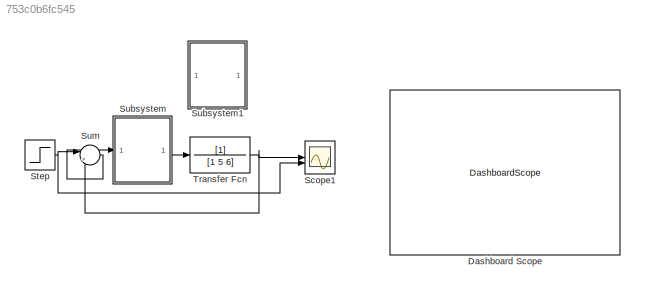
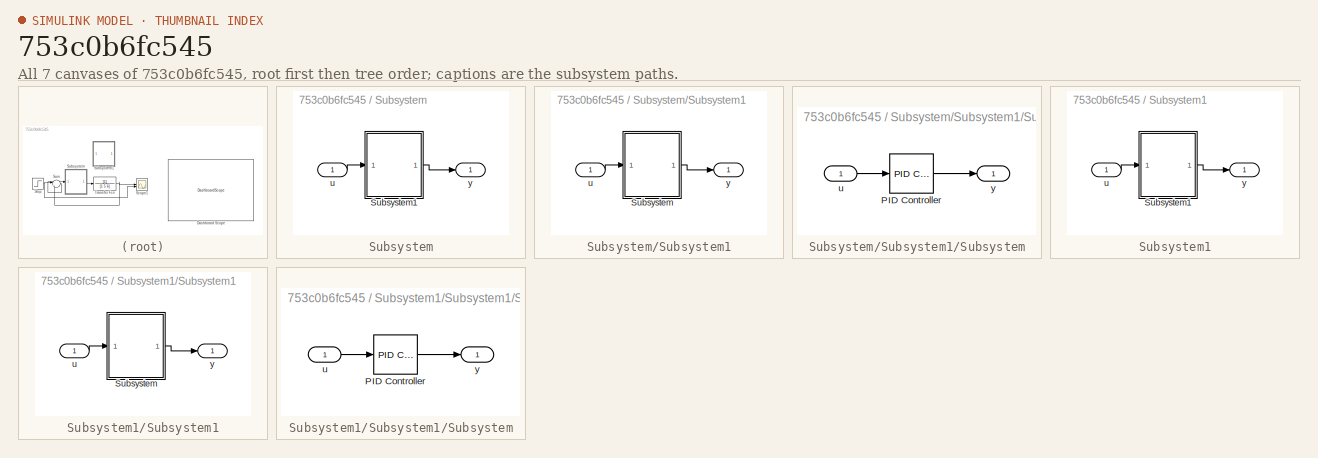
[diagram: thumbnail index - all 7 canvases of the model, root first then tree order]
MODEL slx_753c0b6fc545
KIND model
CONFIG AbsTol = auto
CONFIG EnableMultiTasking = off
CONFIG FixedStep = auto
CONFIG MaxStep = auto
CONFIG MinStep = auto
CONFIG RelTol = 1e-3
CONFIG SampleTimeConstraint = Unconstrained
CONFIG SolverName = VariableStepAuto
CONFIG StartTime = 0.0
CONFIG StopTime = 6
BLOCK [DashboardScope] Dashboard Scope
BLOCK [Scope] Scope1
  ActiveDisplayYMaximum = 1
  ActiveDisplayYMinimum = -1
  DataLoggingVariableName = ScopeData1
  Floating = off
  GraphicalSettings = {"Style":{"BackgroundColor":[0.12941176470588237,0.12941176470588237,0.12941176470588237],"AxesColor":[0.07058823529411765,0.07058823529411765,0.07058823529411765],"LabelsColor":[0.8509803921568627,0.8509803921568627,0.8509803921568627],"PreserveColors":false,"Visible":[true,true],"LineStyle":["-","-"],"LineWidth":[1.5,1.5],"BarWidth":[0.9,0.9],"LineColor":["auto","auto"],"LineFaceAlpha":[1,1],"Li...<+2109ch>
  MultipleDisplayCache = [{"MaxYLimMag":1,"MaxYLimReal":1,"MinYLimMag":0,"MinYLimReal":-1,"PlotAsMagnitudePhase":false,"ShowGrid":true,"ShowLegend":false,"Title":"%<SignalLabel>","YLabel":""}]
  NumInputPorts = 2
  ScopeFrameLocation = window
  WasSavedAsWebScope = on
  WindowPosition = [1096.000000,366.000000,560.000000,420.000000,]
BLOCK [Step] Step
  SampleTime = 0
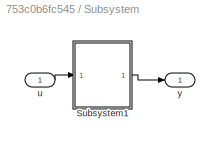
BLOCK [SubSystem] Subsystem
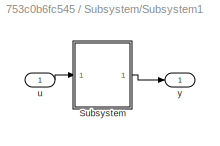
BLOCK [SubSystem] Subsystem/Subsystem1
BLOCK [SubSystem] Subsystem/Subsystem1/Subsystem
BLOCK [Reference] Subsystem/Subsystem1/Subsystem/PID Controller  REF=slpidlib/PID Controller
  LibrarySourceBlock = simulink/Continuous/PID Controller
  SourceBlock = slpidlib/PID Controller
  SourceType = PID 1dof
BLOCK [Inport] Subsystem/Subsystem1/Subsystem/u
BLOCK [Outport] Subsystem/Subsystem1/Subsystem/y
BLOCK [Inport] Subsystem/Subsystem1/u
BLOCK [Outport] Subsystem/Subsystem1/y
BLOCK [Inport] Subsystem/u
BLOCK [Outport] Subsystem/y
BLOCK [SubSystem] Subsystem1
BLOCK [SubSystem] Subsystem1/Subsystem1
BLOCK [SubSystem] Subsystem1/Subsystem1/Subsystem
BLOCK [Reference] Subsystem1/Subsystem1/Subsystem/PID Controller  REF=slpidlib/PID Controller
  LibrarySourceBlock = simulink/Continuous/PID Controller
  SourceBlock = slpidlib/PID Controller
  SourceType = PID 1dof
BLOCK [Inport] Subsystem1/Subsystem1/Subsystem/u
BLOCK [Outport] Subsystem1/Subsystem1/Subsystem/y
BLOCK [Inport] Subsystem1/Subsystem1/u
BLOCK [Outport] Subsystem1/Subsystem1/y
BLOCK [Inport] Subsystem1/u
BLOCK [Outport] Subsystem1/y
BLOCK [Sum] Sum
  Inputs = |++
BLOCK [TransferFcn] Transfer Fcn
  Denominator = [1 5 6]
NET Step:1 -> Scope1:2, Sum:1
LINE Subsystem/Subsystem1/Subsystem/PID Controller:1 -> Subsystem/Subsystem1/Subsystem/y:1
LINE Subsystem/Subsystem1/Subsystem/u:1 -> Subsystem/Subsystem1/Subsystem/PID Controller:1
LINE Subsystem/Subsystem1/Subsystem:1 -> Subsystem/Subsystem1/y:1
LINE Subsystem/Subsystem1/u:1 -> Subsystem/Subsystem1/Subsystem:1
LINE Subsystem/Subsystem1:1 -> Subsystem/y:1
LINE Subsystem/u:1 -> Subsystem/Subsystem1:1
LINE Subsystem1/Subsystem1/Subsystem/PID Controller:1 -> Subsystem1/Subsystem1/Subsystem/y:1
LINE Subsystem1/Subsystem1/Subsystem/u:1 -> Subsystem1/Subsystem1/Subsystem/PID Controller:1
LINE Subsystem1/Subsystem1/Subsystem:1 -> Subsystem1/Subsystem1/y:1
LINE Subsystem1/Subsystem1/u:1 -> Subsystem1/Subsystem1/Subsystem:1
LINE Subsystem1/Subsystem1:1 -> Subsystem1/y:1
LINE Subsystem1/u:1 -> Subsystem1/Subsystem1:1
LINE Subsystem:1 -> Transfer Fcn:1
LINE Sum:1 -> Subsystem:1
NET Transfer Fcn:1 -> Scope1:1, Sum:2
note: NET lines group one-source signal fan-out (src -> all destinations, sorted); 1:1 wires keep LINE
